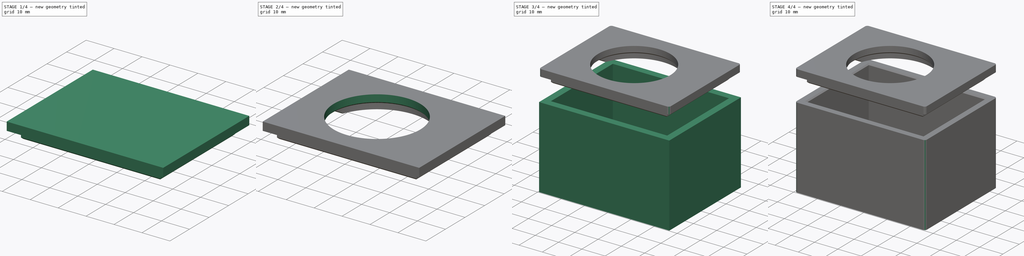
[diagram: build sequence overview — one tinted view per stage of 4, left to right]
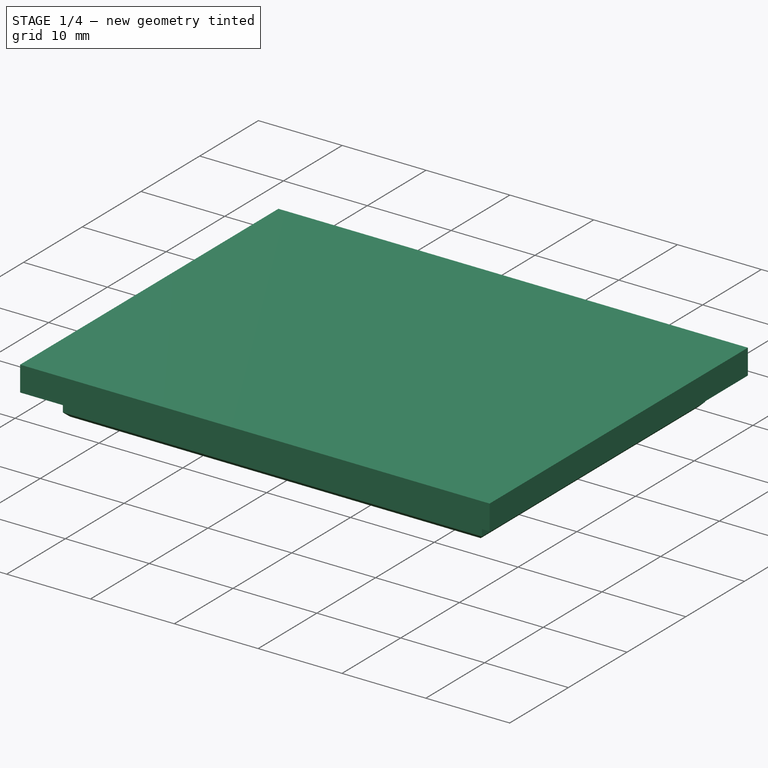
[diagram: stage 1 of 4 — iso view after this stage's code; geometry added in this stage tinted green]
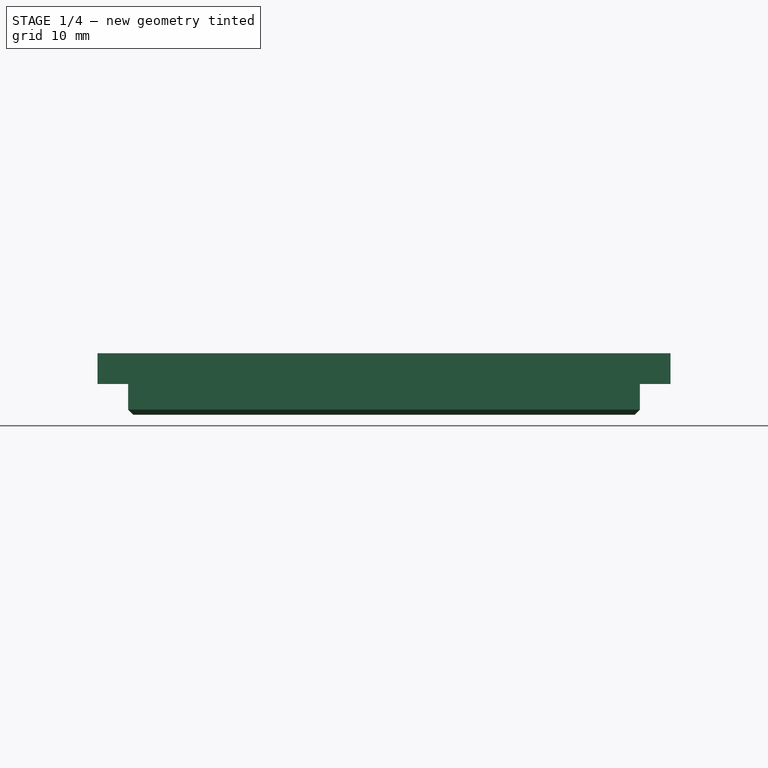
[diagram: stage 1 of 4 — front view after this stage's code; geometry added in this stage tinted green]
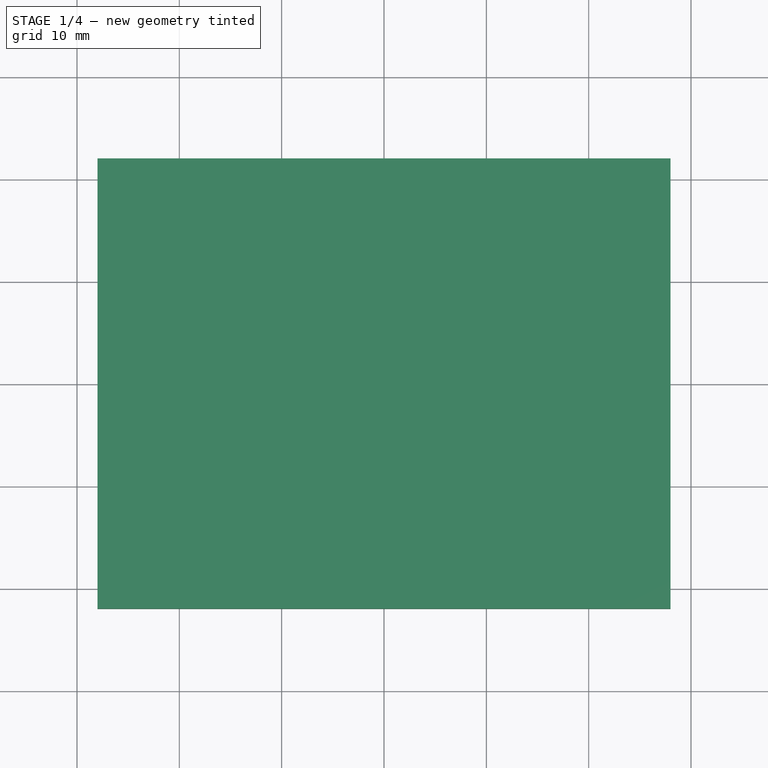
[diagram: stage 1 of 4 — top view after this stage's code; geometry added in this stage tinted green]
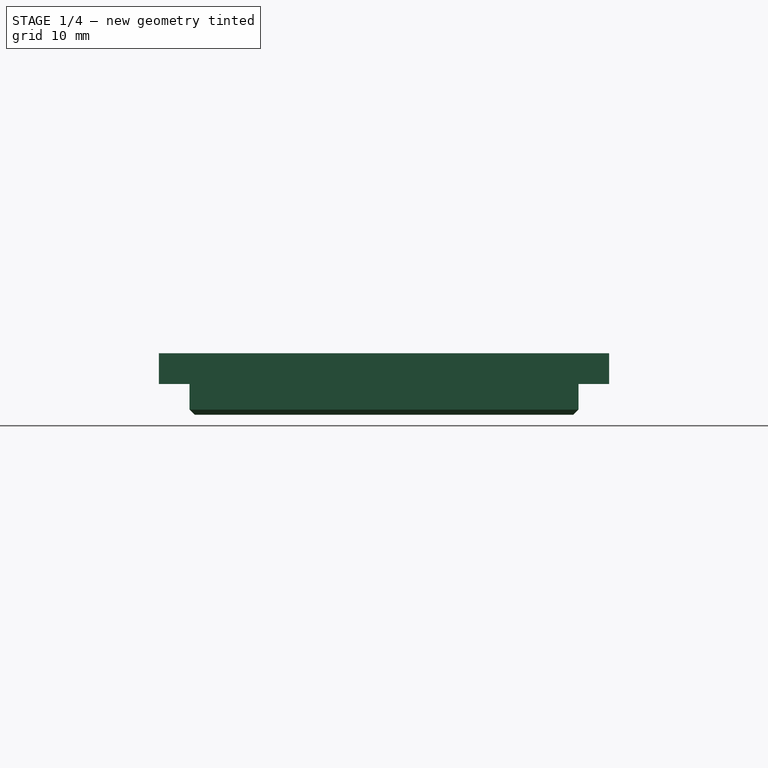
[diagram: stage 1 of 4 — right view after this stage's code; geometry added in this stage tinted green]
FCSTD DOCUMENT  (FreeCAD 0.19R)
Label: Microscope_Camera_Enclosure
License: All rights reserved
LicenseURL: http://en.wikipedia.org/wiki/All_rights_reserved
objects: Sketcher::SketchObject×6, PartDesign::Chamfer×4, PartDesign::Pad×3, PartDesign::Pocket×3, PartDesign::Fillet×2, PartDesign::Body×2, Spreadsheet::Sheet×1, PartDesign::Plane×1
note: 33 computed .brp shape members not serialized (recipe doc carries the construction recipe); baked Part::Feature solids carry a one-line shape summary decoded from their .brp

FEATURE [Sketcher::SketchObject] Sketch002  label="PassThur_Sketch"
  ExternalGeometry = -> [Pocket]
  FullyConstrained = true
  MapMode = 5
  Placement = pos=(-28,0,0) rot=(0.57735,-0.57735,-0.57735;2.0944rad)
  Support = -> [Pocket]
  expr: Constraints[2] = <<Dims>>.Main_Body_Pass_Thur_Radius + <<Dims>>.Main_Body_Wall_Thickness
  expr: Constraints[1] = <<Dims>>.Main_Body_Pass_Thur_Radius + <<Dims>>.Main_Body_Wall_Thickness
  expr: Constraints[0] = <<Dims>>.Main_Body_Pass_Thur_Radius
  sketch-geometry (1):
    g0: Circle CenterX=13 CenterY=9 CenterZ=0 NormalX=0 NormalY=0 NormalZ=1 AngleXU=0 Radius=6
  constraints (3):
    c: Radius(g0) = 6
    c: DistanceY(g-1,g0) = 9
    c: DistanceX(g0,g-5) = 9
FEATURE [PartDesign::Plane] DatumPlane
  AttachmentOffset = pos=(0,0,45) rot=(0,0,1;0rad)
  Length = 66.583
  MapMode = 5
  Placement = pos=(0,0,45) rot=(0,0,1;0rad)
  ResizeMode = 0
  Support = -> [XY_Plane001]
  Width = 60.583
  expr: .AttachmentOffset.Base.z = <<Dims>>.Main_Body_Heigth + <<Dims>>.Main_Body_Wall_Thickness + <<Dims>>.Lid_Main_Body_Offset
FEATURE [Sketcher::SketchObject] Sketch003
  FullyConstrained = true
  MapMode = 5
  Placement = pos=(0,0,45) rot=(0,0,1;0rad)
  Support = -> [DatumPlane]
  expr: Constraints[11] = (<<Dims>>.Main_Body_Length + 2 * <<Dims>>.Main_Body_Wall_Thickness) / 2
  expr: Constraints[10] = <<Dims>>.Main_Body_Length + 2 * <<Dims>>.Main_Body_Wall_Thickness
  expr: Constraints[9] = (<<Dims>>.Main_Body_Width + 2 * <<Dims>>.Main_Body_Wall_Thickness) / 2
  expr: Constraints[8] = <<Dims>>.Main_Body_Width + 2 * <<Dims>>.Main_Body_Wall_Thickness
  sketch-geometry (4):
    g0: LineSegment StartX=28 StartY=22 StartZ=0 EndX=-28 EndY=22 EndZ=0
    g1: LineSegment StartX=-28 StartY=22 StartZ=0 EndX=-28 EndY=-22 EndZ=0
    g2: LineSegment StartX=-28 StartY=-22 StartZ=0 EndX=28 EndY=-22 EndZ=0
    g3: LineSegment StartX=28 StartY=-22 StartZ=0 EndX=28 EndY=22 EndZ=0
  constraints (12):
    c: Coincident(g0,g1)
    c: Coincident(g1,g2)
    c: Coincident(g2,g3)
    c: Coincident(g3,g0)
    c: Horizontal(g0)
    c: Horizontal(g2)
    c: Vertical(g1)
    c: Vertical(g3)
    c: DistanceY(g3,g3) = 44
    c: DistanceY(g2,g-1) = 22
    c: DistanceX(g1,g2) = 56
    c: DistanceX(g1,g-1) = 28
FEATURE [PartDesign::Pad] Pad001  label="Lid_Top_Pad"
  Direction = (1,1,1)
  Length = 3
  Length2 = 100
  Placement = pos=(0,0,45) rot=(0,0,1;0rad)
  Profile = -> Sketch003
  Type = 0
  expr: Length = <<Dims>>.Lid_Thickness
FEATURE [Sketcher::SketchObject] Sketch004  label="Lid_Insert"
  ExternalGeometry = -> [Pad001]
  FullyConstrained = true
  MapMode = 5
  Placement = pos=(0,0,45) rot=(1,0,0;3.14159rad)
  Support = -> [Pad001]
  expr: Constraints[18] = <<Dims>>.Lid_Camera_Cutout_Notch / 2
  expr: Constraints[13] = (<<Dims>>.Main_Body_Width + 2 * <<Dims>>.Main_Body_Wall_Thickness) / 2 + <<Dims>>.Lid_Camera_Pos_Offset
  expr: Constraints[11] = <<Dims>>.Main_Body_Wall_Thickness
  expr: Constraints[10] = <<Dims>>.Main_Body_Wall_Thickness
  expr: Constraints[17] = <<Dims>>.Lid_Camera_Cutout_Notch / 2
  expr: Constraints[14] = <<Dims>>.Lid_Camera_Cutout_Inset
  expr: Constraints[9] = <<Dims>>.Main_Body_Wall_Thickness
  expr: Constraints[8] = <<Dims>>.Main_Body_Wall_Thickness
  sketch-geometry (8):
    g0: LineSegment StartX=-25 StartY=19 StartZ=0 EndX=25 EndY=19 EndZ=0
    g1: LineSegment StartX=25 StartY=19 StartZ=0 EndX=25 EndY=-19 EndZ=0
    g2: LineSegment StartX=25 StartY=-19 StartZ=0 EndX=-25 EndY=-19 EndZ=0
    g3: LineSegment StartX=-25 StartY=-19 StartZ=0 EndX=-25 EndY=-6 EndZ=0
    g4: ArcOfCircle CenterX=-2.5 CenterY=0 CenterZ=0 NormalX=0 NormalY=0 NormalZ=1 AngleXU=0 Radius=18 StartAngle=3.48143 EndAngle=9.08494
    g5: LineSegment StartX=-25 StartY=6 StartZ=0 EndX=-19.4706 EndY=6 EndZ=0
    g6: LineSegment StartX=-25 StartY=-6 StartZ=0 EndX=-19.4706 EndY=-6 EndZ=0
    g7: LineSegment StartX=-25 StartY=6 StartZ=0 EndX=-25 EndY=19 EndZ=0
  constraints (24):
    c: Coincident(g0,g1)
    c: Coincident(g1,g2)
    c: Coincident(g2,g3)
    c: Coincident(g7,g0)
    c: Horizontal(g0)
    c: Horizontal(g2)
    c: Vertical(g1)
    c: Vertical(g3)
    c: DistanceY(g-6,g1) = 3
    c: DistanceX(g0,g-5) = 3
    c: DistanceY(g0,g-5) = 3
    c: DistanceX(g-4,g0) = 3
    c: PointOnObject(g4,g-1)
    c: DistanceX(g-4,g4) = 25.5
    c: Diameter(g4) = 36
    c: Horizontal(g5)
    c: Horizontal(g6)
    c: DistanceY(g6,g-1) = 6
    c: DistanceY(g-1,g5) = 6
    c: Coincident(g4,g6)
    c: Coincident(g4,g5)
    c: Coincident(g3,g6)
    c: Coincident(g7,g5)
    c: Tangent(g3,g7)
FEATURE [PartDesign::Pad] Pad002  label="Lid_Insert_Pad"
  BaseFeature = -> Pad001
  Direction = (1,1,1)
  Length = 3
  Length2 = 100
  Placement = pos=(0,0,45) rot=(0,0,1;0rad)
  Profile = -> Sketch004
  Type = 0
  expr: Length = <<Dims>>.Lid_Thickness
FEATURE [PartDesign::Body] Body  label="Enclosure"
  Group = -> [Sketch,Pad,Sketch001,Pocket,Sketch002,Chamfer,Pocket002,Fillet]
  Origin = -> Origin
  Tip = -> Fillet
FEATURE [PartDesign::Chamfer] Chamfer001
  Angle = 45
  Base = -> Pad002 [Edge25,Edge23,Edge31,Edge29,Edge27]
  BaseFeature = -> Pad002
  ChamferType = 0
  FlipDirection = false
  Placement = pos=(0,0,45) rot=(0,0,1;0rad)
  Size = 0.5
  Size2 = 1
  SupportTransform = false
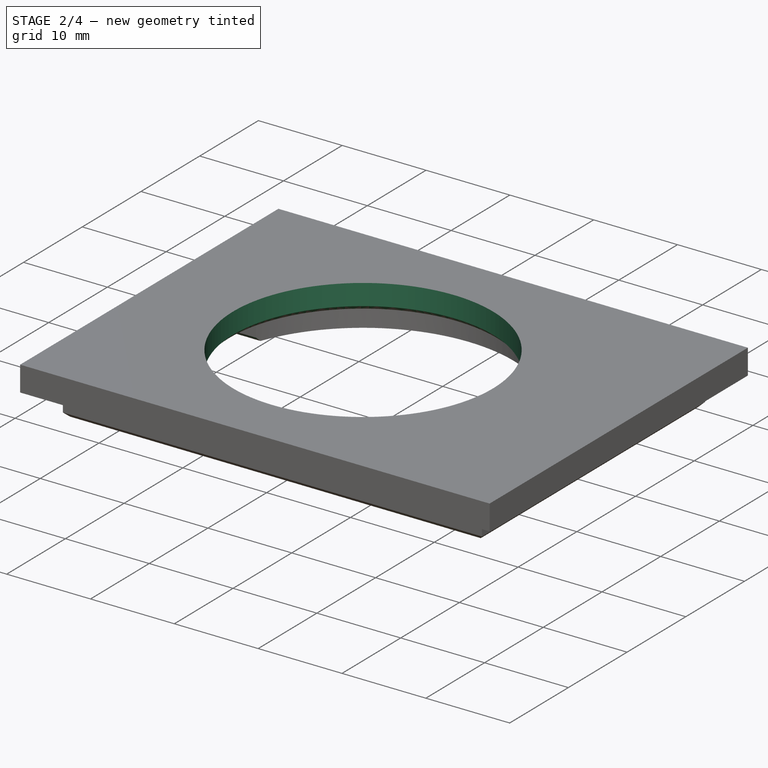
[diagram: stage 2 of 4 — iso view after this stage's code; geometry added in this stage tinted green]
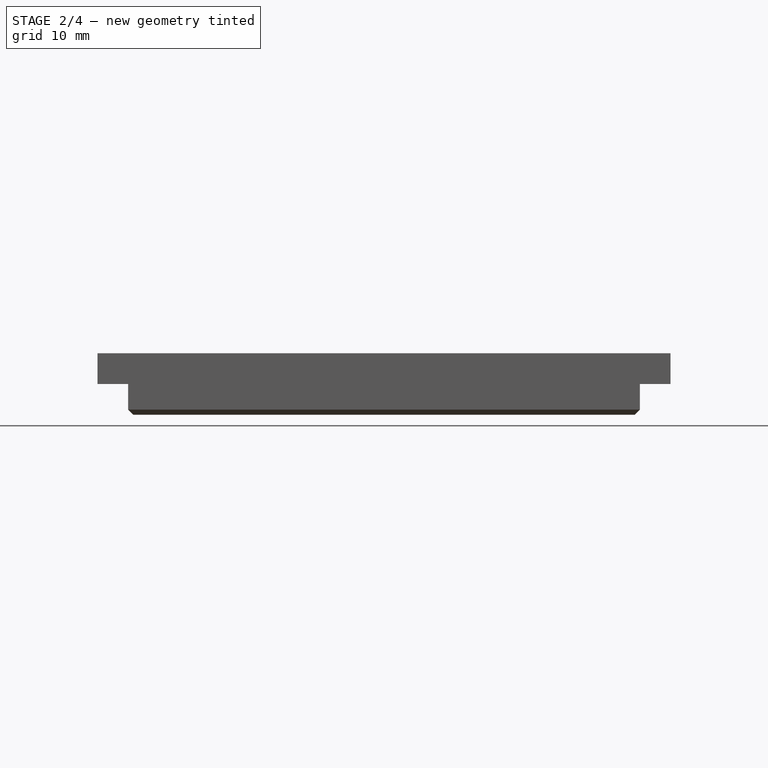
[diagram: stage 2 of 4 — front view after this stage's code; geometry added in this stage tinted green]
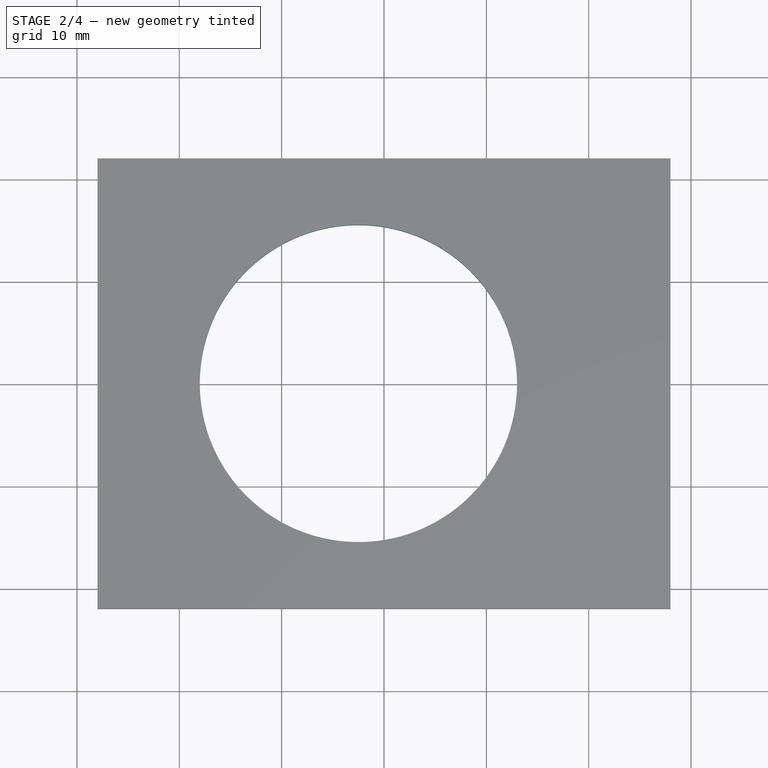
[diagram: stage 2 of 4 — top view after this stage's code; geometry added in this stage tinted green]
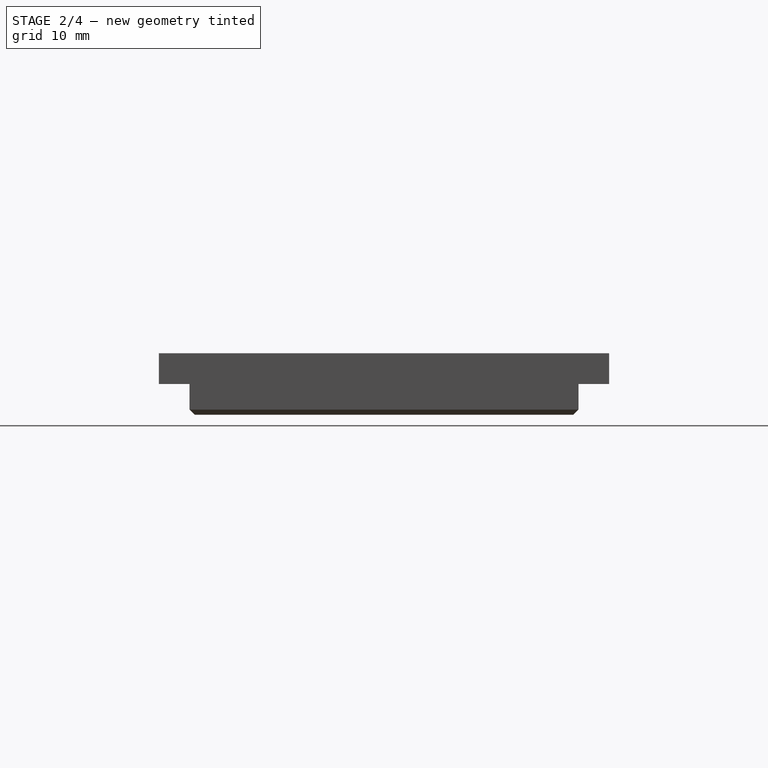
[diagram: stage 2 of 4 — right view after this stage's code; geometry added in this stage tinted green]
FEATURE [PartDesign::Pocket] Pocket001  label="Camera_Pocket"
  BaseFeature = -> Chamfer001
  Length = 0
  Length2 = 100
  Placement = pos=(0,0,45) rot=(0,0,1;0rad)
  Profile = -> Sketch005
  Type = 1
FEATURE [PartDesign::Chamfer] Chamfer002
  Angle = 45
  Base = -> Pocket001 [Edge15]
  BaseFeature = -> Pocket001
  ChamferType = 0
  FlipDirection = false
  Placement = pos=(0,0,45) rot=(0,0,1;0rad)
  Size = 0.5
  Size2 = 1
  SupportTransform = false
FEATURE [PartDesign::Chamfer] Chamfer003
  Angle = 45
  Base = -> Chamfer002 [Edge38,Edge28]
  BaseFeature = -> Chamfer002
  ChamferType = 0
  FlipDirection = false
  Placement = pos=(0,0,45) rot=(0,0,1;0rad)
  Size = 0.5
  Size2 = 1
  SupportTransform = false
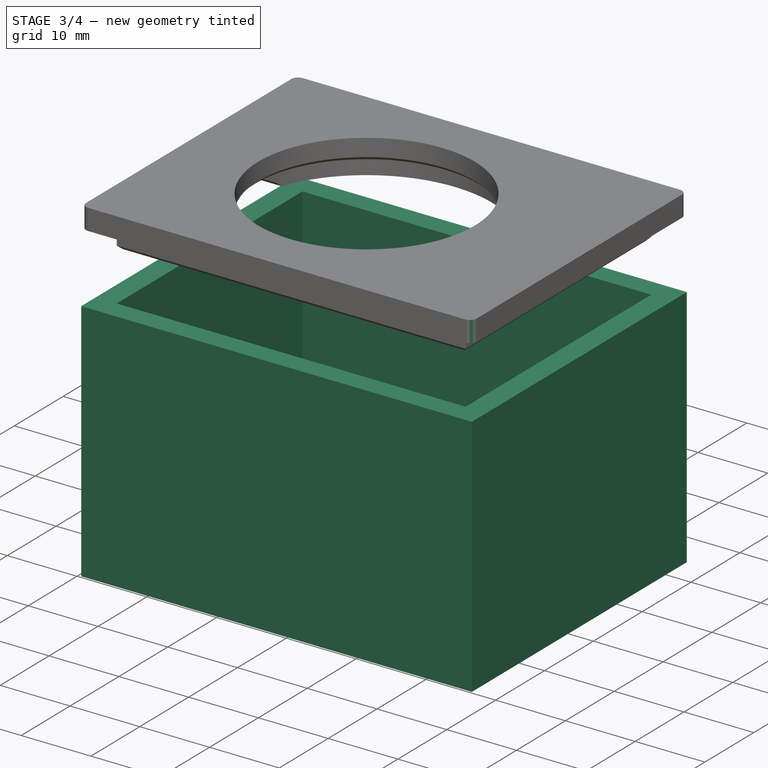
[diagram: stage 3 of 4 — iso view after this stage's code; geometry added in this stage tinted green]
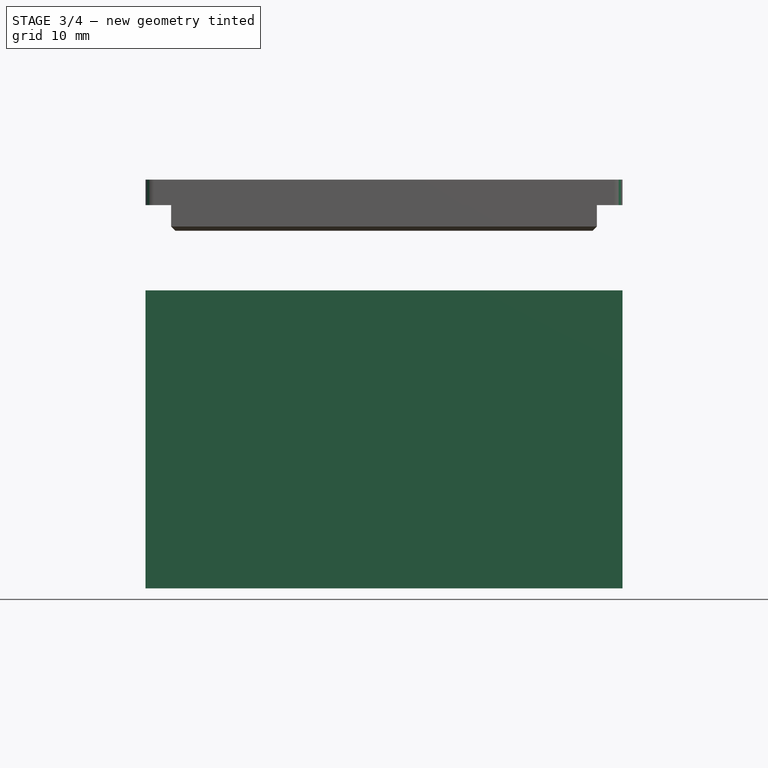
[diagram: stage 3 of 4 — front view after this stage's code; geometry added in this stage tinted green]
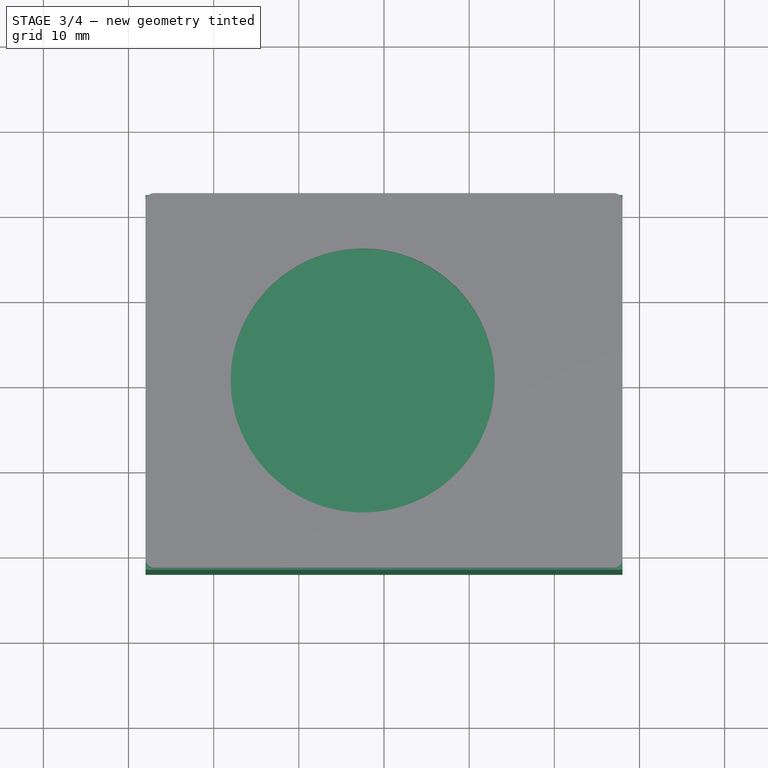
[diagram: stage 3 of 4 — top view after this stage's code; geometry added in this stage tinted green]
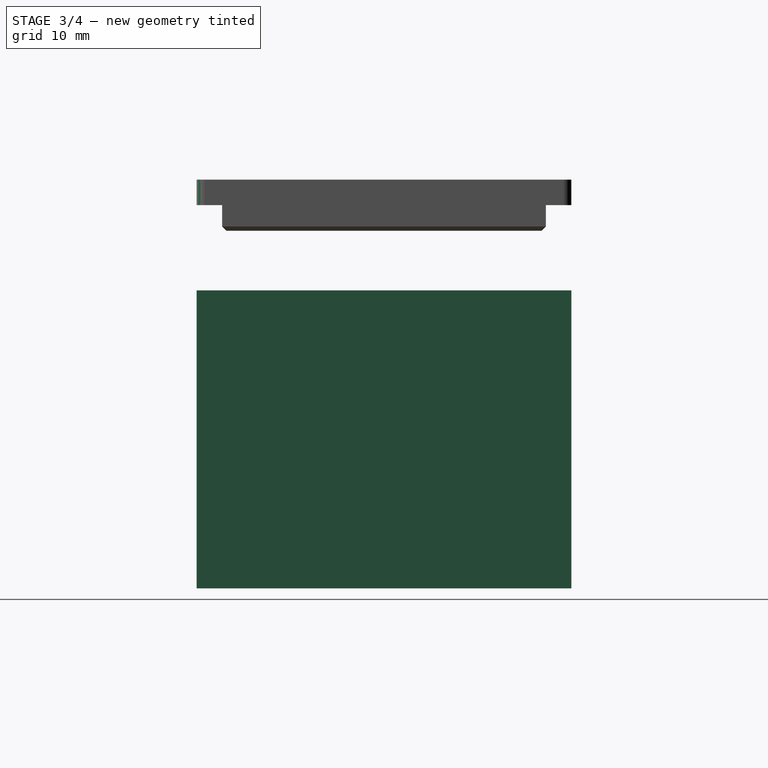
[diagram: stage 3 of 4 — right view after this stage's code; geometry added in this stage tinted green]
FEATURE [Sketcher::SketchObject] Sketch  label="Base_Sketch"
  FullyConstrained = true
  MapMode = 5
  Support = -> [XY_Plane]
  expr: Constraints[11] = (<<Dims>>.Main_Body_Length + 2 * <<Dims>>.Main_Body_Wall_Thickness) / 2
  expr: .Constraints.Main_Body_Length = <<Dims>>.Main_Body_Length + 2 * <<Dims>>.Main_Body_Wall_Thickness
  expr: Constraints[10] = (<<Dims>>.Main_Body_Width + 2 * <<Dims>>.Main_Body_Wall_Thickness) / 2
  expr: .Constraints.Main_Body_Width = <<Dims>>.Main_Body_Width + 2 * <<Dims>>.Main_Body_Wall_Thickness
  sketch-geometry (4):
    g0: LineSegment StartX=-28 StartY=22 StartZ=0 EndX=28 EndY=22 EndZ=0
    g1: LineSegment StartX=28 StartY=22 StartZ=0 EndX=28 EndY=-22 EndZ=0
    g2: LineSegment StartX=28 StartY=-22 StartZ=0 EndX=-28 EndY=-22 EndZ=0
    g3: LineSegment StartX=-28 StartY=-22 StartZ=0 EndX=-28 EndY=22 EndZ=0
  constraints (12):
    c: Coincident(g0,g1)
    c: Coincident(g1,g2)
    c: Coincident(g2,g3)
    c: Coincident(g3,g0)
    c: Horizontal(g0)
    c: Horizontal(g2)
    c: Vertical(g1)
    c: Vertical(g3)
    c: DistanceX(g0,g0) = 56  'Main_Body_Length'
    c: DistanceY(g3,g3) = 44  'Main_Body_Width'
    c: DistanceY(g2,g-1) = 22
    c: DistanceX(g0,g-1) = 28
FEATURE [Spreadsheet::Sheet] Spreadsheet  label="Dims"
  cells = A1=Main_Body_Wall_Thickness; B1(Main_Body_Wall_Thickness)=3; A2=Main_Body_Length; B2(Main_Body_Length)=50; A3=Main_Body_Heigth; B3(Main_Body_Heigth)=32; A4=Main_Body_Width; B4(Main_Body_Width)=38; A5=Main_Body_Pass_Thur; B5(Main_Body_Pass_Thur_Radius)=6; A6=Lid_Main_Body_Offset; B6(Lid_Main_Body_Offset)=10; A7=Lid_Thickness; B7(Lid_Thickness)==B1; A8=Lid_Camera_Cutout_Diameter; B8(Lid_Camera_Cutout_Diameter)=31; A9=Lid_Camera_Cutout_Inset; B9(Lid_Camera_Cutout_Inset)=36; A10=Lid_Camera_Cutout_Notch; B10(Lid_Camera_Cutout_Notch)=12; A11=Lid_Camera_Pos_Offset; B11(Lid_Camera_Pos_Offset)=3.5
FEATURE [PartDesign::Pad] Pad  label="Base_Pad"
  Direction = (1,1,1)
  Length = 35
  Length2 = 100
  Profile = -> Sketch
  Type = 0
  expr: Length = <<Dims>>.Main_Body_Heigth + <<Dims>>.Main_Body_Wall_Thickness
FEATURE [Sketcher::SketchObject] Sketch001  label="Base_Cutout_Sketch"
  ExternalGeometry = -> [Pad]
  FullyConstrained = true
  MapMode = 5
  Placement = pos=(0,0,35) rot=(0,0,1;0rad)
  Support = -> [Pad]
  expr: Constraints[11] = <<Dims>>.Main_Body_Wall_Thickness
  expr: Constraints[10] = <<Dims>>.Main_Body_Wall_Thickness
  expr: Constraints[9] = <<Dims>>.Main_Body_Wall_Thickness
  expr: Constraints[8] = <<Dims>>.Main_Body_Wall_Thickness
  sketch-geometry (4):
    g0: LineSegment StartX=-25 StartY=19 StartZ=0 EndX=25 EndY=19 EndZ=0
    g1: LineSegment StartX=25 StartY=19 StartZ=0 EndX=25 EndY=-19 EndZ=0
    g2: LineSegment StartX=25 StartY=-19 StartZ=0 EndX=-25 EndY=-19 EndZ=0
    g3: LineSegment StartX=-25 StartY=-19 StartZ=0 EndX=-25 EndY=19 EndZ=0
  constraints (12):
    c: Coincident(g0,g1)
    c: Coincident(g1,g2)
    c: Coincident(g2,g3)
    c: Coincident(g3,g0)
    c: Horizontal(g0)
    c: Horizontal(g2)
    c: Vertical(g1)
    c: Vertical(g3)
    c: DistanceX(g-4,g0) = 3
    c: DistanceY(g0,g-4) = 3
    c: DistanceY(g-6,g2) = 3
    c: DistanceX(g0,g-5) = 3
FEATURE [PartDesign::Pocket] Pocket  label="Base_Pocket"
  BaseFeature = -> Pad
  Length = 32
  Length2 = 100
  Profile = -> Sketch001
  Type = 0
  expr: Length = <<Dims>>.Main_Body_Heigth
FEATURE [PartDesign::Fillet] Fillet001
  Base = -> Chamfer003 [Edge40,Edge37,Edge38,Edge42]
  BaseFeature = -> Chamfer003
  Placement = pos=(0,0,45) rot=(0,0,1;0rad)
  Radius = 1
  SupportTransform = false
FEATURE [PartDesign::Body] Body001  label="Lid"
  Group = -> [DatumPlane,Sketch003,Pad001,Sketch004,Pad002,Sketch005,Chamfer001,Pocket001,Chamfer002,Chamfer003,Fillet001]
  Origin = -> Origin001
  Tip = -> Fillet001
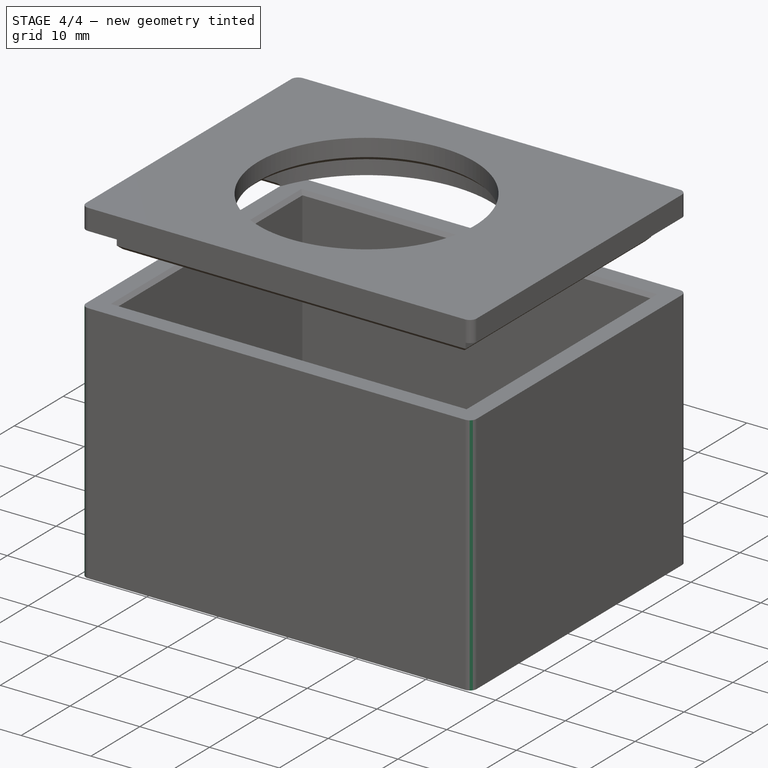
[diagram: stage 4 of 4 — iso view after this stage's code; geometry added in this stage tinted green]
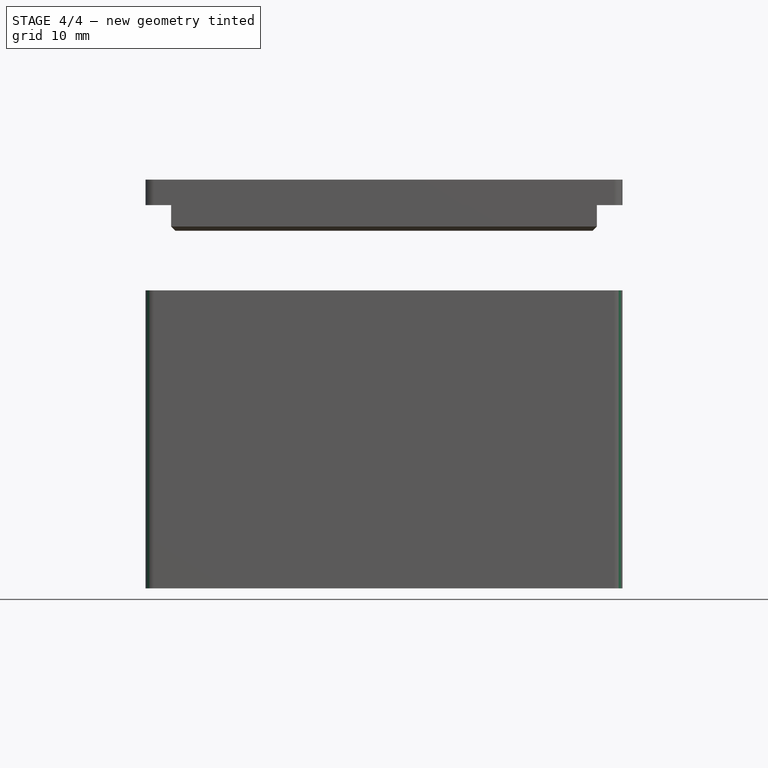
[diagram: stage 4 of 4 — front view after this stage's code; geometry added in this stage tinted green]
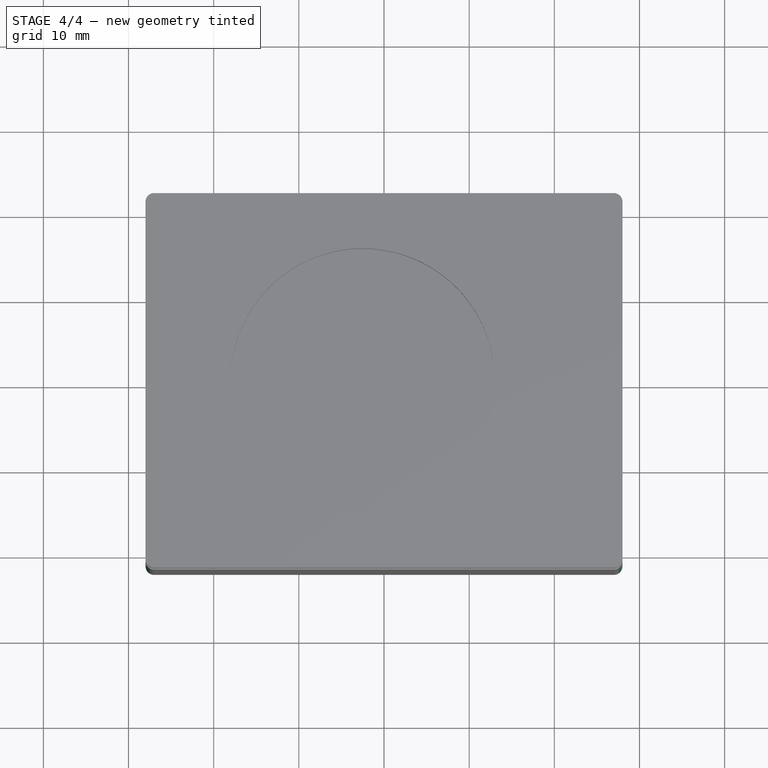
[diagram: stage 4 of 4 — top view after this stage's code; geometry added in this stage tinted green]
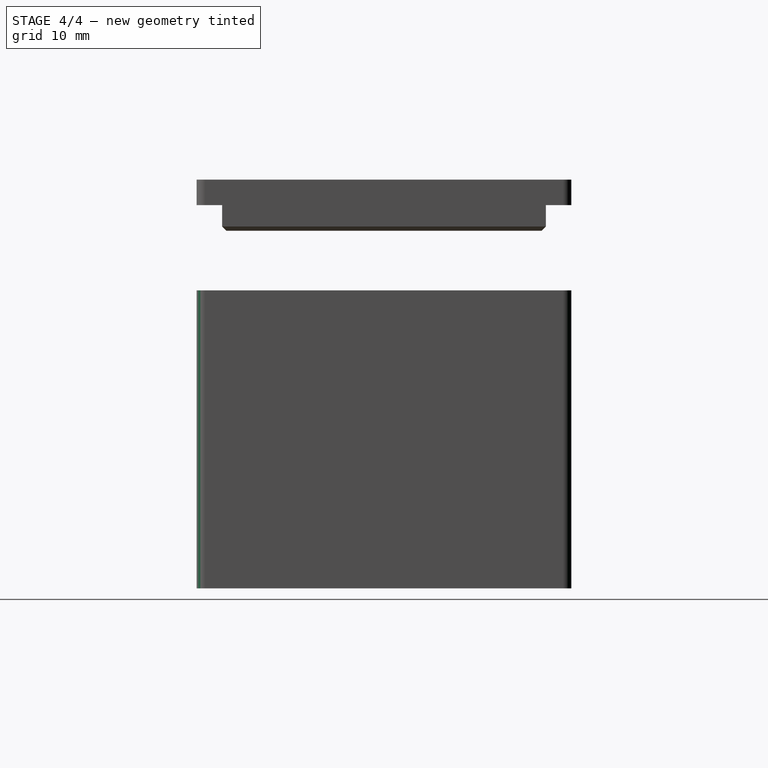
[diagram: stage 4 of 4 — right view after this stage's code; geometry added in this stage tinted green]
FEATURE [Sketcher::SketchObject] Sketch005  label="Camera_Cutout_Sketch"
  ExternalGeometry = -> [Pad002]
  FullyConstrained = true
  MapMode = 5
  Placement = pos=(0,0,48) rot=(0,0,1;0rad)
  Support = -> [Pad002]
  expr: Constraints[2] = <<Dims>>.Lid_Camera_Cutout_Diameter
  expr: Constraints[1] = (<<Dims>>.Main_Body_Width + 2 * <<Dims>>.Main_Body_Wall_Thickness) / 2 + <<Dims>>.Lid_Camera_Pos_Offset
  sketch-geometry (1):
    g0: Circle CenterX=-2.5 CenterY=0 CenterZ=0 NormalX=0 NormalY=0 NormalZ=1 AngleXU=0 Radius=15.5
  constraints (3):
    c: PointOnObject(g0,g-1)
    c: DistanceX(g-4,g0) = 25.5
    c: Diameter(g0) = 31
FEATURE [PartDesign::Chamfer] Chamfer
  Angle = 45
  Base = -> Pocket [Edge13,Edge16,Edge15,Edge14]
  BaseFeature = -> Pocket
  ChamferType = 0
  FlipDirection = false
  Size = 0.5
  Size2 = 1
  SupportTransform = false
FEATURE [PartDesign::Pocket] Pocket002  label="PassThur_Pocket"
  BaseFeature = -> Chamfer
  Length = 3.5
  Length2 = 100
  Profile = -> Sketch002
  Type = 0
  expr: Length = <<Dims>>.Main_Body_Wall_Thickness + 0.5
FEATURE [PartDesign::Fillet] Fillet
  Base = -> Pocket002 [Edge17,Edge18,Edge23,Edge20]
  BaseFeature = -> Pocket002
  Radius = 1
  SupportTransform = false
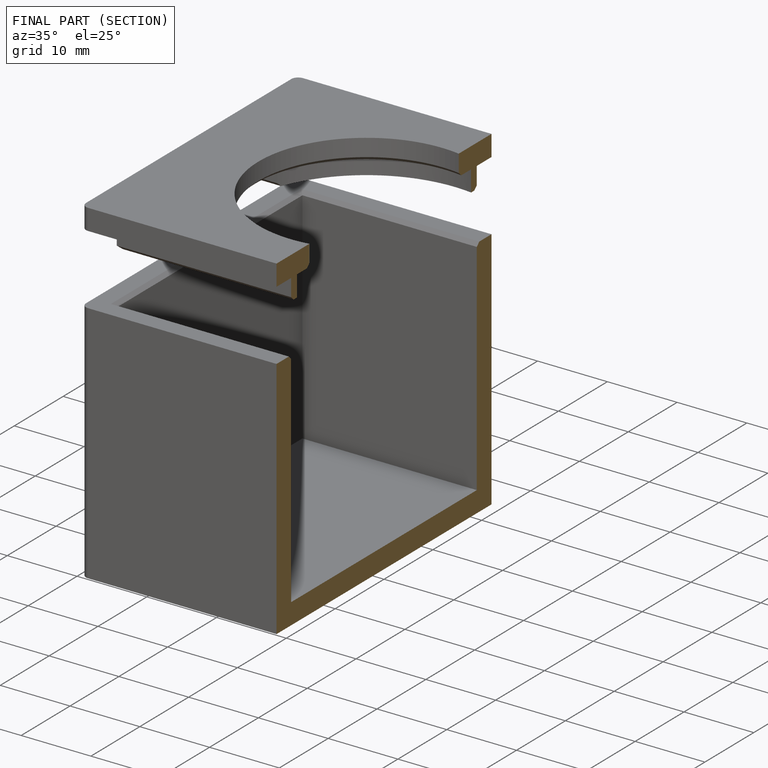
[diagram: finished part — half-section view (interior)]
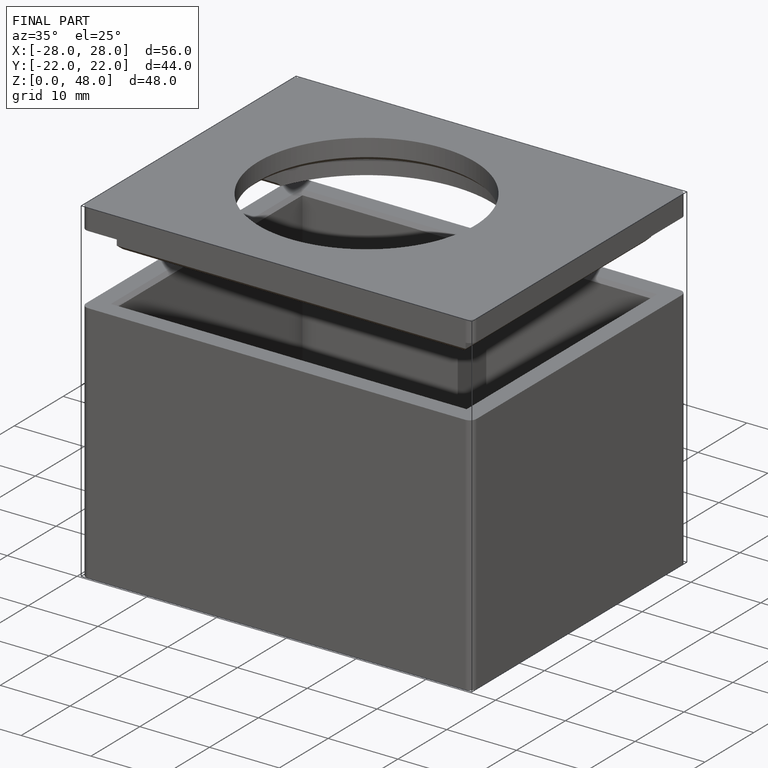
[diagram: finished part — iso view with bounding-box wireframe]
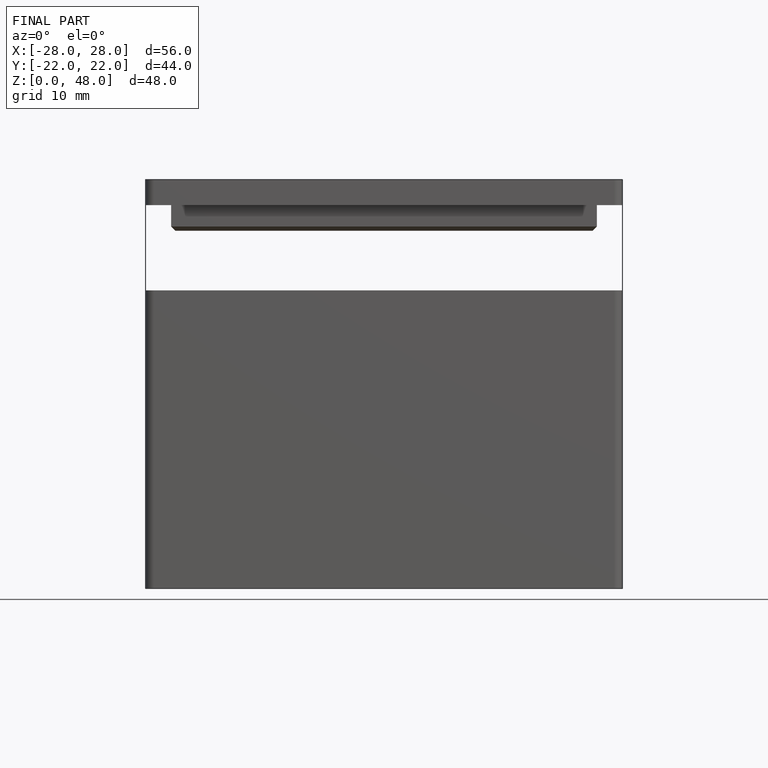
[diagram: finished part — front view with bounding-box wireframe]
